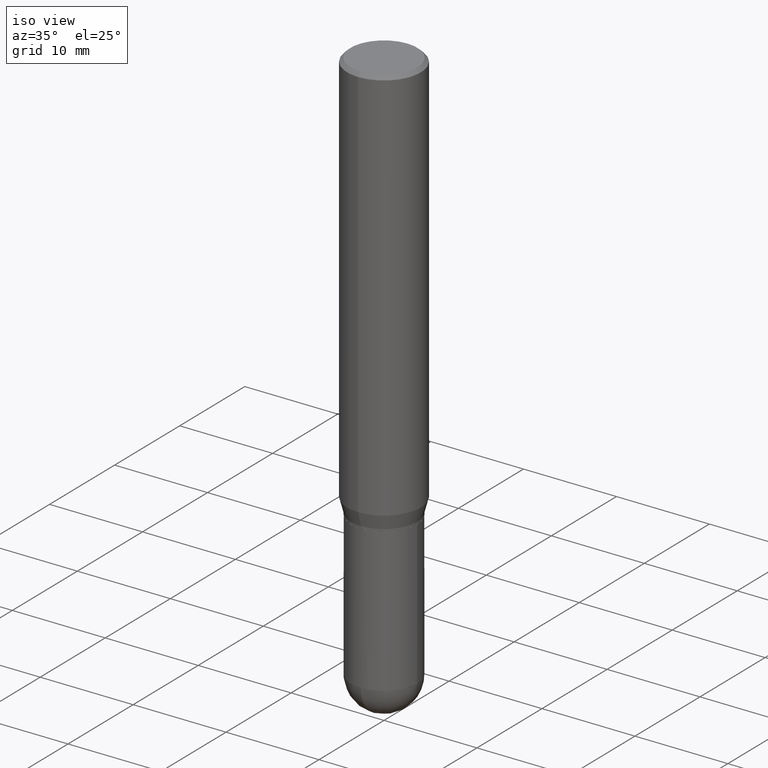
[diagram: clean part render]
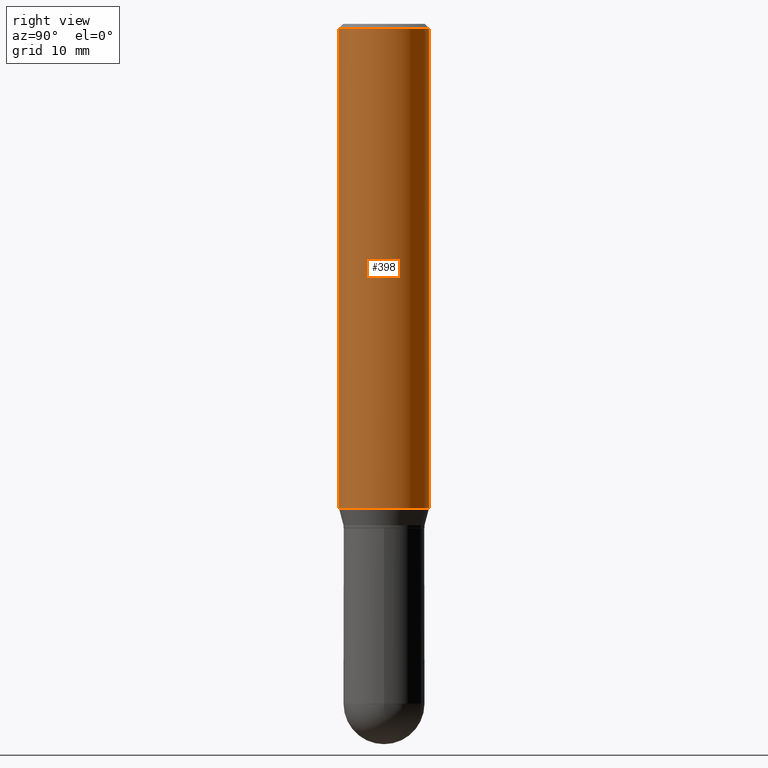
[diagram: tour spotlight — one face highlighted and labeled with its STEP entity id]
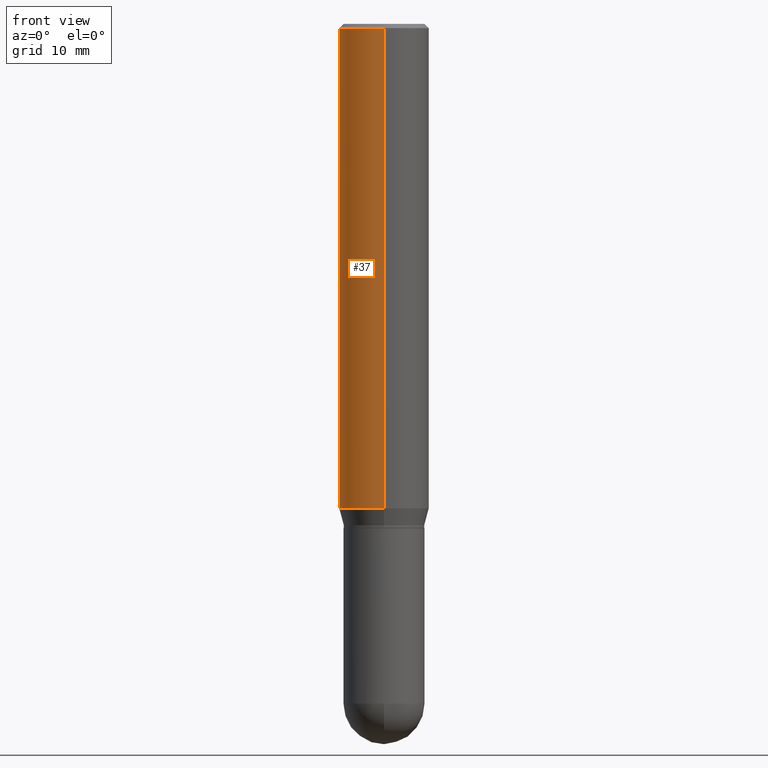
[diagram: tour spotlight — one face highlighted and labeled with its STEP entity id]
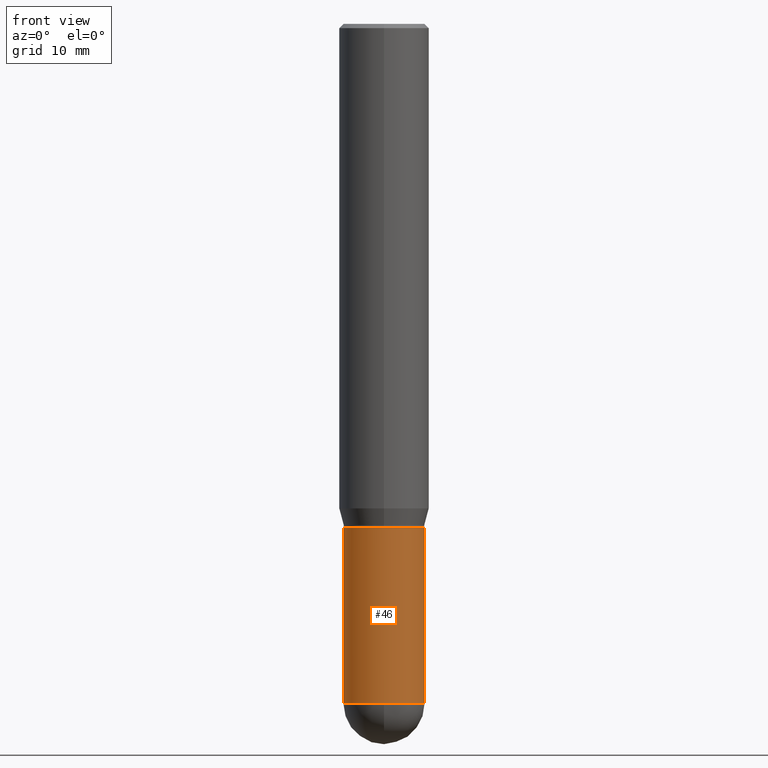
[diagram: tour spotlight — one face highlighted and labeled with its STEP entity id]
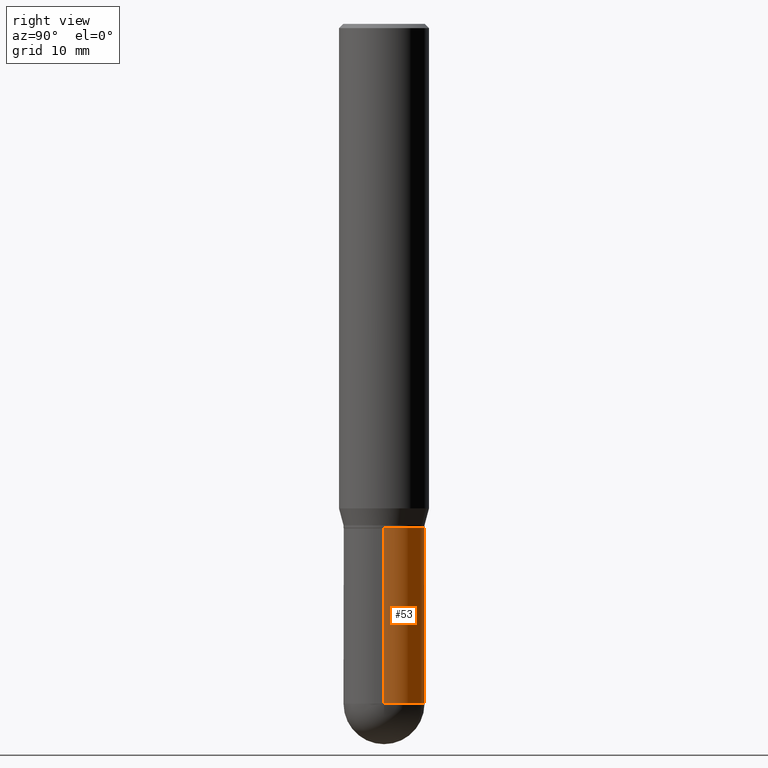
[diagram: tour spotlight — one face highlighted and labeled with its STEP entity id]
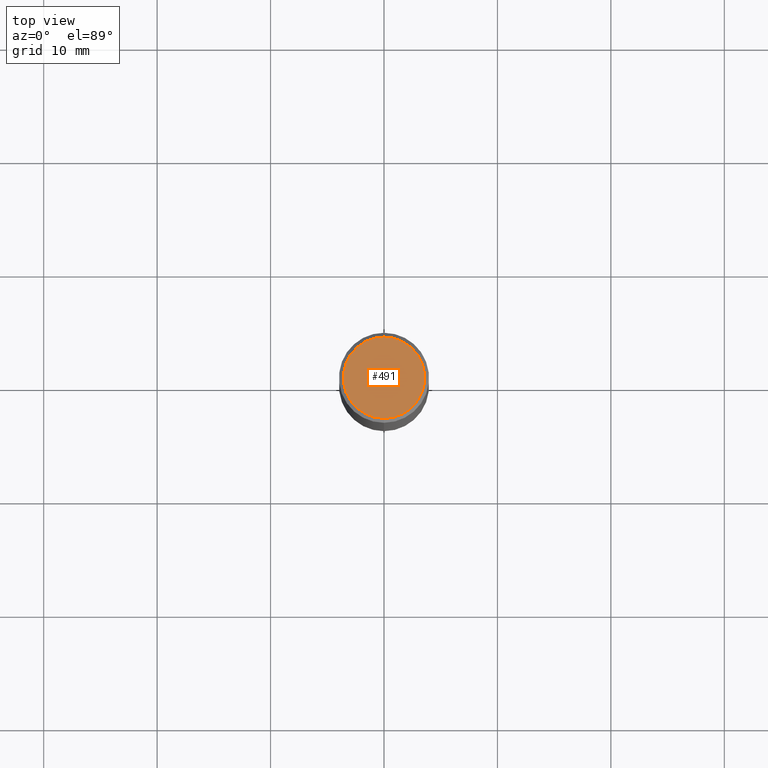
[diagram: tour spotlight — one face highlighted and labeled with its STEP entity id]
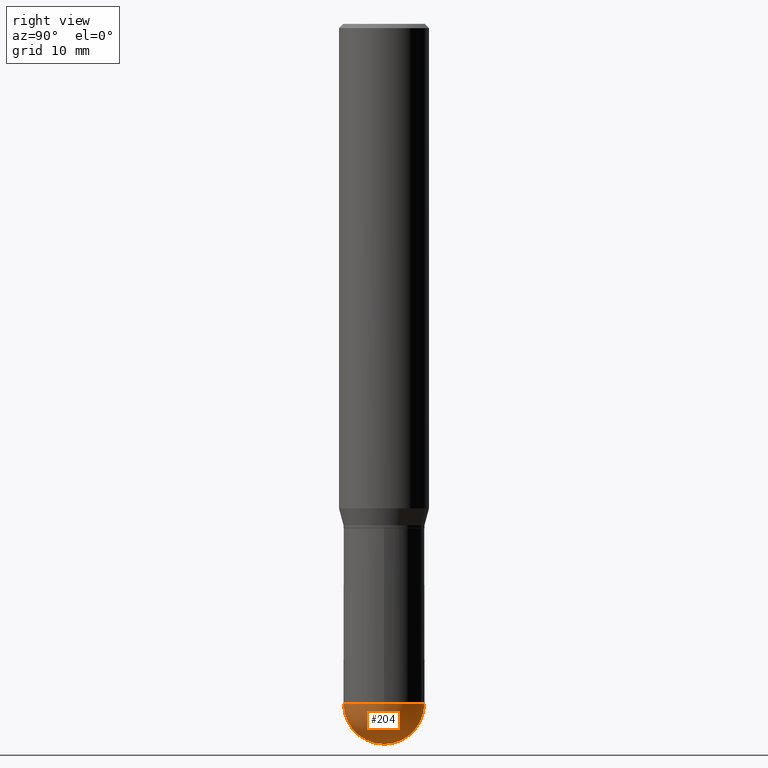
[diagram: tour spotlight — one face highlighted and labeled with its STEP entity id]
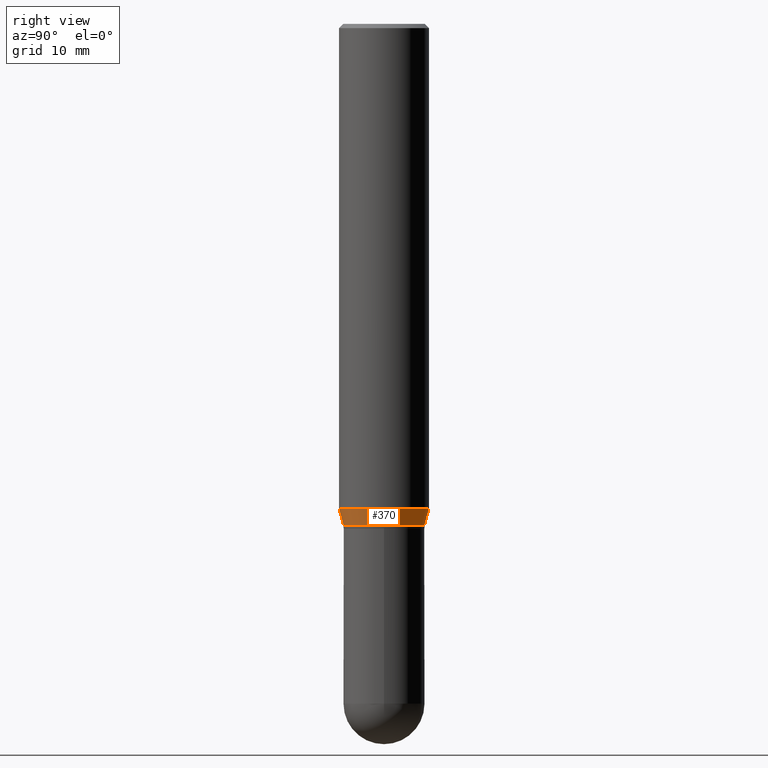
[diagram: tour spotlight — one face highlighted and labeled with its STEP entity id]
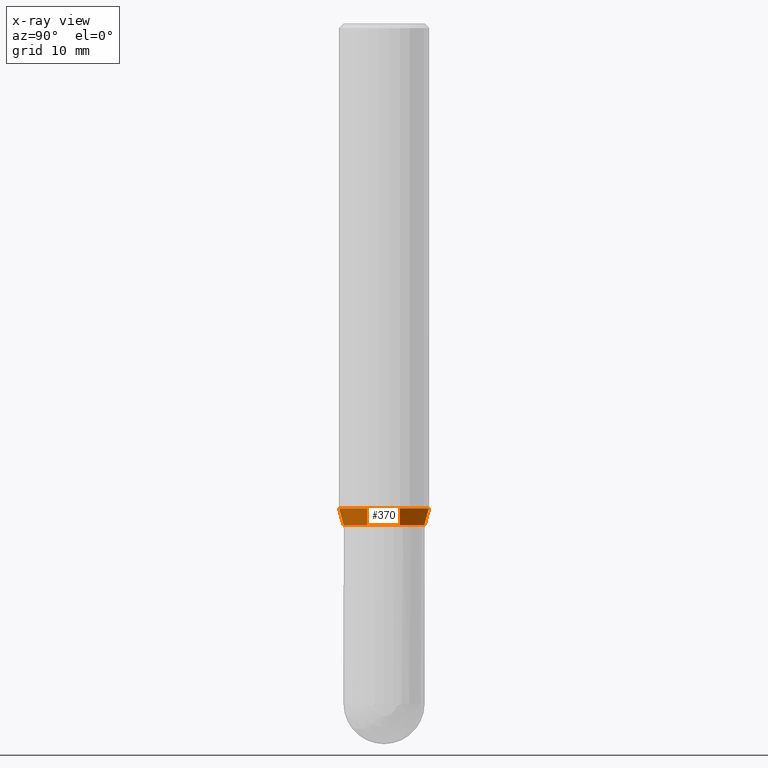
[diagram: x-ray of the same camera — body ghosted, this tour face saturated]
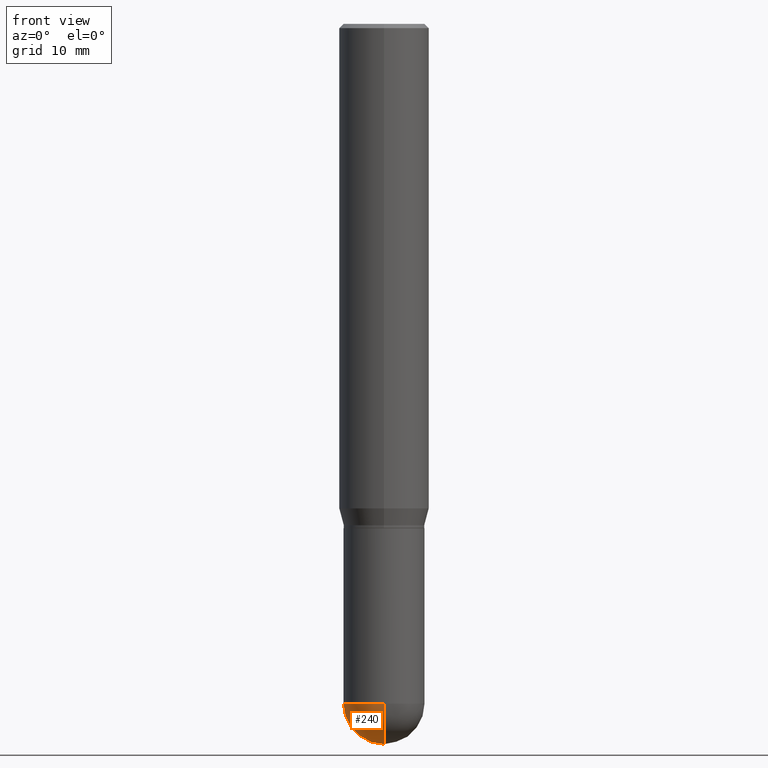
[diagram: tour spotlight — one face highlighted and labeled with its STEP entity id]
A machine part: a face-by-face anatomy tour. The part has 17 B-rep faces; the first image is the clean iso view, then the 8 largest visible faces are spotlighted one at a time (largest first), each with its STEP entity span.

Face 1 — right view, entity #398. In plain terms, the highlighted cylindrical surface (partial cylindrical patch) has radius 3.9688 mm, axis along (-0, 0, 1).
Definition (entity closure, byte-faithful):
#1 = VERTEX_POINT ( 'NONE', #6 ) ;
#6 = CARTESIAN_POINT ( 'NONE',  ( -1.091087918388437956E-15, -0.1562500000000058842, -1.681593404861546404 ) ) ;
#31 = CARTESIAN_POINT ( 'NONE',  ( 4.112439191980971805E-29, -5.871030058564987327E-15, -1.681593404861546848 ) ) ;
#49 = DIRECTION ( 'NONE',  ( -2.445560966219159996E-29, 3.491349360429000645E-15, 1.000000000000000000 ) ) ;
#56 = CIRCLE ( 'NONE', #174, 0.1562500000000000000 ) ;
#95 = EDGE_LOOP ( 'NONE', ( #345, #334, #500, #184 ) ) ;
#98 = VERTEX_POINT ( 'NONE', #280 ) ;
#111 = DIRECTION ( 'NONE',  ( -2.445560966219159716E-29, 3.491349360429001039E-15, 1.000000000000000000 ) ) ;
#133 = CIRCLE ( 'NONE', #226, 0.1562500000000000000 ) ;
#157 = LINE ( 'NONE', #493, #508 ) ;
#160 = DIRECTION ( 'NONE',  ( -6.982962677686265133E-15, -1.000000000000000000, 3.491349360429001039E-15 ) ) ;
#166 = AXIS2_PLACEMENT_3D ( 'NONE', #326, #250, #160 ) ;
#170 = CYLINDRICAL_SURFACE ( 'NONE', #166, 0.1562500000000000000 ) ;
#174 = AXIS2_PLACEMENT_3D ( 'NONE', #512, #350, #231 ) ;
#184 = ORIENTED_EDGE ( 'NONE', *, *, #328, .F. ) ;
#210 = CARTESIAN_POINT ( 'NONE',  ( -1.091087918388478976E-15, -0.1562500000000000000, 5.455233375670314124E-16 ) ) ;
#215 = FACE_OUTER_BOUND ( 'NONE', #95, .T. ) ;
#224 = DIRECTION ( 'NONE',  ( -2.445560966219159996E-29, 3.491349360429000645E-15, 1.000000000000000000 ) ) ;
#226 = AXIS2_PLACEMENT_3D ( 'NONE', #31, #111, #269 ) ;
#231 = DIRECTION ( 'NONE',  ( -6.982962677686265133E-15, -1.000000000000000000, 3.496765431890256920E-15 ) ) ;
#250 = DIRECTION ( 'NONE',  ( -2.445560966219159716E-29, 3.491349360429001039E-15, 1.000000000000000000 ) ) ;
#269 = DIRECTION ( 'NONE',  ( -6.982962677686265133E-15, -1.000000000000000000, 3.496765431890256920E-15 ) ) ;
#279 = CARTESIAN_POINT ( 'NONE',  ( 1.110223024625197561E-15, 0.1562499999999941436, -1.681593404861547514 ) ) ;
#280 = CARTESIAN_POINT ( 'NONE',  ( -1.091087918388478779E-15, -0.1562500000000000833, -0.01499999999999948423 ) ) ;
#285 = EDGE_CURVE ( 'NONE', #1, #507, #133, .T. ) ;
#289 = LINE ( 'NONE', #210, #293 ) ;
#293 = VECTOR ( 'NONE', #49, 39.37007874015748143 ) ;
#311 = VERTEX_POINT ( 'NONE', #397 ) ;
#326 = CARTESIAN_POINT ( 'NONE',  ( 0.000000000000000000, 0.000000000000000000, 0.000000000000000000 ) ) ;
#328 = EDGE_CURVE ( 'NONE', #1, #98, #289, .T. ) ;
#334 = ORIENTED_EDGE ( 'NONE', *, *, #374, .T. ) ;
#345 = ORIENTED_EDGE ( 'NONE', *, *, #285, .T. ) ;
#350 = DIRECTION ( 'NONE',  ( -2.445560966219159716E-29, 3.491349360429001039E-15, 1.000000000000000000 ) ) ;
#374 = EDGE_CURVE ( 'NONE', #507, #311, #157, .T. ) ;
#397 = CARTESIAN_POINT ( 'NONE',  ( 1.110223024625197561E-15, 0.1562499999999999445, -0.01500000000000057711 ) ) ;
#398 = ADVANCED_FACE ( 'NONE', ( #215 ), #170, .T. ) ;
#493 = CARTESIAN_POINT ( 'NONE',  ( 1.110223024625156343E-15, 0.1562500000000000000, -5.455233375670314124E-16 ) ) ;
#496 = EDGE_CURVE ( 'NONE', #98, #311, #56, .T. ) ;
#500 = ORIENTED_EDGE ( 'NONE', *, *, #496, .F. ) ;
#507 = VERTEX_POINT ( 'NONE', #279 ) ;
#508 = VECTOR ( 'NONE', #224, 39.37007874015748143 ) ;
#512 = CARTESIAN_POINT ( 'NONE',  ( 3.668341449328747176E-31, -5.237024040643512307E-17, -0.01500000000000003067 ) ) ;

Face 2 — front view, entity #37. In plain terms, the highlighted cylindrical surface (partial cylindrical patch) has radius 3.9688 mm, axis along (-0, 0, 1).
Definition (entity closure, byte-faithful):
#1 = VERTEX_POINT ( 'NONE', #6 ) ;
#6 = CARTESIAN_POINT ( 'NONE',  ( -1.091087918388437956E-15, -0.1562500000000058842, -1.681593404861546404 ) ) ;
#24 = CARTESIAN_POINT ( 'NONE',  ( 4.112439191980971805E-29, -5.871030058564987327E-15, -1.681593404861546848 ) ) ;
#26 = DIRECTION ( 'NONE',  ( -2.445560966219159716E-29, 3.491349360429001039E-15, 1.000000000000000000 ) ) ;
#37 = ADVANCED_FACE ( 'NONE', ( #251 ), #445, .T. ) ;
#47 = CARTESIAN_POINT ( 'NONE',  ( 0.000000000000000000, 0.000000000000000000, 0.000000000000000000 ) ) ;
#49 = DIRECTION ( 'NONE',  ( -2.445560966219159996E-29, 3.491349360429000645E-15, 1.000000000000000000 ) ) ;
#61 = CIRCLE ( 'NONE', #452, 0.1562500000000000000 ) ;
#73 = ORIENTED_EDGE ( 'NONE', *, *, #328, .T. ) ;
#77 = CARTESIAN_POINT ( 'NONE',  ( 3.668341449328747176E-31, -5.237024040643512307E-17, -0.01500000000000003067 ) ) ;
#98 = VERTEX_POINT ( 'NONE', #280 ) ;
#100 = ORIENTED_EDGE ( 'NONE', *, *, #374, .F. ) ;
#114 = DIRECTION ( 'NONE',  ( -2.445560966219159716E-29, 3.491349360429001039E-15, 1.000000000000000000 ) ) ;
#115 = EDGE_LOOP ( 'NONE', ( #100, #302, #73, #237 ) ) ;
#157 = LINE ( 'NONE', #493, #508 ) ;
#161 = DIRECTION ( 'NONE',  ( -2.445560966219159716E-29, 3.491349360429001039E-15, 1.000000000000000000 ) ) ;
#210 = CARTESIAN_POINT ( 'NONE',  ( -1.091087918388478976E-15, -0.1562500000000000000, 5.455233375670314124E-16 ) ) ;
#224 = DIRECTION ( 'NONE',  ( -2.445560966219159996E-29, 3.491349360429000645E-15, 1.000000000000000000 ) ) ;
#237 = ORIENTED_EDGE ( 'NONE', *, *, #454, .F. ) ;
#251 = FACE_OUTER_BOUND ( 'NONE', #115, .T. ) ;
#259 = CIRCLE ( 'NONE', #310, 0.1562500000000000000 ) ;
#265 = EDGE_CURVE ( 'NONE', #507, #1, #61, .T. ) ;
#279 = CARTESIAN_POINT ( 'NONE',  ( 1.110223024625197561E-15, 0.1562499999999941436, -1.681593404861547514 ) ) ;
#280 = CARTESIAN_POINT ( 'NONE',  ( -1.091087918388478779E-15, -0.1562500000000000833, -0.01499999999999948423 ) ) ;
#289 = LINE ( 'NONE', #210, #293 ) ;
#293 = VECTOR ( 'NONE', #49, 39.37007874015748143 ) ;
#302 = ORIENTED_EDGE ( 'NONE', *, *, #265, .T. ) ;
#310 = AXIS2_PLACEMENT_3D ( 'NONE', #77, #114, #421 ) ;
#311 = VERTEX_POINT ( 'NONE', #397 ) ;
#317 = DIRECTION ( 'NONE',  ( -6.982962677686265133E-15, -1.000000000000000000, 3.491349360429001039E-15 ) ) ;
#328 = EDGE_CURVE ( 'NONE', #1, #98, #289, .T. ) ;
#344 = AXIS2_PLACEMENT_3D ( 'NONE', #47, #161, #317 ) ;
#374 = EDGE_CURVE ( 'NONE', #507, #311, #157, .T. ) ;
#397 = CARTESIAN_POINT ( 'NONE',  ( 1.110223024625197561E-15, 0.1562499999999999445, -0.01500000000000057711 ) ) ;
#421 = DIRECTION ( 'NONE',  ( -6.982962677686265133E-15, -1.000000000000000000, 3.496765431890256920E-15 ) ) ;
#445 = CYLINDRICAL_SURFACE ( 'NONE', #344, 0.1562500000000000000 ) ;
#452 = AXIS2_PLACEMENT_3D ( 'NONE', #24, #26, #501 ) ;
#454 = EDGE_CURVE ( 'NONE', #311, #98, #259, .T. ) ;
#493 = CARTESIAN_POINT ( 'NONE',  ( 1.110223024625156343E-15, 0.1562500000000000000, -5.455233375670314124E-16 ) ) ;
#501 = DIRECTION ( 'NONE',  ( -6.982962677686265133E-15, -1.000000000000000000, 3.496765431890256920E-15 ) ) ;
#507 = VERTEX_POINT ( 'NONE', #279 ) ;
#508 = VECTOR ( 'NONE', #224, 39.37007874015748143 ) ;

Face 3 — front view, entity #46. In plain terms, the highlighted cylindrical surface (partial cylindrical patch) has radius 3.5712 mm, axis along (-0, 0, 1).
Definition (entity closure, byte-faithful):
#2 = ORIENTED_EDGE ( 'NONE', *, *, #305, .T. ) ;
#12 = DIRECTION ( 'NONE',  ( -2.445468806185136597E-29, 3.491481338843145583E-15, 1.000000000000000000 ) ) ;
#32 = DIRECTION ( 'NONE',  ( -2.445468806185136597E-29, 3.491481338843145583E-15, 1.000000000000000000 ) ) ;
#44 = CARTESIAN_POINT ( 'NONE',  ( 0.1406000000000000583, -8.155751259403701439E-15, -2.359399999999999942 ) ) ;
#46 = ADVANCED_FACE ( 'NONE', ( #208 ), #396, .T. ) ;
#60 = VERTEX_POINT ( 'NONE', #284 ) ;
#65 = CARTESIAN_POINT ( 'NONE',  ( 4.279570410823989044E-29, -6.110092342975505460E-15, -1.750000000000000222 ) ) ;
#67 = CARTESIAN_POINT ( 'NONE',  ( -0.1406000000000000028, 9.990230864787008809E-16, -6.916022736898399140E-30 ) ) ;
#69 = VERTEX_POINT ( 'NONE', #249 ) ;
#70 = LINE ( 'NONE', #67, #464 ) ;
#79 = ORIENTED_EDGE ( 'NONE', *, *, #448, .F. ) ;
#97 = CIRCLE ( 'NONE', #432, 0.1406000000000000305 ) ;
#124 = DIRECTION ( 'NONE',  ( 1.000000000000000000, -6.982962677686268288E-15, 4.876176775795936353E-29 ) ) ;
#129 = ORIENTED_EDGE ( 'NONE', *, *, #422, .T. ) ;
#162 = DIRECTION ( 'NONE',  ( -2.445468806185136877E-29, 3.491481338843145188E-15, 1.000000000000000000 ) ) ;
#167 = EDGE_CURVE ( 'NONE', #404, #187, #463, .T. ) ;
#180 = AXIS2_PLACEMENT_3D ( 'NONE', #65, #229, #340 ) ;
#187 = VERTEX_POINT ( 'NONE', #44 ) ;
#191 = CARTESIAN_POINT ( 'NONE',  ( 5.769839101313211634E-29, -8.237801070866517629E-15, -2.359399999999999942 ) ) ;
#202 = CARTESIAN_POINT ( 'NONE',  ( -9.990230864786434913E-16, -0.1406000000000083017, -2.359399999999999498 ) ) ;
#208 = FACE_OUTER_BOUND ( 'NONE', #329, .T. ) ;
#216 = ORIENTED_EDGE ( 'NONE', *, *, #167, .T. ) ;
#229 = DIRECTION ( 'NONE',  ( -2.445468806185136597E-29, 3.491481338843145583E-15, 1.000000000000000000 ) ) ;
#235 = AXIS2_PLACEMENT_3D ( 'NONE', #191, #343, #506 ) ;
#249 = CARTESIAN_POINT ( 'NONE',  ( -0.1406000000000000583, -6.174923620442310269E-15, -2.359399999999999942 ) ) ;
#252 = CARTESIAN_POINT ( 'NONE',  ( 0.1406000000000000028, -9.818045524826893030E-16, 6.855904546769086274E-30 ) ) ;
#284 = CARTESIAN_POINT ( 'NONE',  ( -0.1406000000000000028, -6.174923620442310269E-15, -1.750000000000000222 ) ) ;
#305 = EDGE_CURVE ( 'NONE', #187, #349, #363, .T. ) ;
#320 = EDGE_CURVE ( 'NONE', #60, #349, #401, .T. ) ;
#327 = AXIS2_PLACEMENT_3D ( 'NONE', #483, #12, #124 ) ;
#329 = EDGE_LOOP ( 'NONE', ( #79, #129, #216, #2, #382 ) ) ;
#331 = VECTOR ( 'NONE', #162, 39.37007874015748143 ) ;
#335 = DIRECTION ( 'NONE',  ( 1.000000000000000000, -6.982962677686270655E-15, 0.000000000000000000 ) ) ;
#340 = DIRECTION ( 'NONE',  ( 1.000000000000000000, -6.982962677686265133E-15, 0.000000000000000000 ) ) ;
#343 = DIRECTION ( 'NONE',  ( -2.445468806185136597E-29, 3.491481338843145583E-15, 1.000000000000000000 ) ) ;
#349 = VERTEX_POINT ( 'NONE', #366 ) ;
#363 = LINE ( 'NONE', #252, #331 ) ;
#366 = CARTESIAN_POINT ( 'NONE',  ( 0.1406000000000000028, -7.091896895458194566E-15, -1.750000000000000222 ) ) ;
#382 = ORIENTED_EDGE ( 'NONE', *, *, #320, .F. ) ;
#396 = CYLINDRICAL_SURFACE ( 'NONE', #327, 0.1406000000000000028 ) ;
#401 = CIRCLE ( 'NONE', #180, 0.1406000000000000028 ) ;
#404 = VERTEX_POINT ( 'NONE', #202 ) ;
#407 = CARTESIAN_POINT ( 'NONE',  ( 5.769839101313211634E-29, -8.237801070866517629E-15, -2.359399999999999942 ) ) ;
#422 = EDGE_CURVE ( 'NONE', #69, #404, #97, .T. ) ;
#432 = AXIS2_PLACEMENT_3D ( 'NONE', #407, #32, #335 ) ;
#435 = DIRECTION ( 'NONE',  ( -2.445468806185136877E-29, 3.491481338843145188E-15, 1.000000000000000000 ) ) ;
#448 = EDGE_CURVE ( 'NONE', #69, #60, #70, .T. ) ;
#463 = CIRCLE ( 'NONE', #235, 0.1406000000000000305 ) ;
#464 = VECTOR ( 'NONE', #435, 39.37007874015748143 ) ;
#483 = CARTESIAN_POINT ( 'NONE',  ( 0.000000000000000000, 0.000000000000000000, 0.000000000000000000 ) ) ;
#506 = DIRECTION ( 'NONE',  ( 1.000000000000000000, -6.982962677686270655E-15, 0.000000000000000000 ) ) ;

Face 4 — right view, entity #53. In plain terms, the highlighted cylindrical surface (partial cylindrical patch) has radius 3.5712 mm, axis along (-0, 0, 1).
Definition (entity closure, byte-faithful):
#11 = CYLINDRICAL_SURFACE ( 'NONE', #297, 0.1406000000000000028 ) ;
#18 = DIRECTION ( 'NONE',  ( -2.445468806185136597E-29, 3.491481338843145583E-15, 1.000000000000000000 ) ) ;
#19 = CARTESIAN_POINT ( 'NONE',  ( 0.000000000000000000, 0.000000000000000000, 0.000000000000000000 ) ) ;
#35 = AXIS2_PLACEMENT_3D ( 'NONE', #68, #388, #348 ) ;
#42 = CARTESIAN_POINT ( 'NONE',  ( 9.818045524827470871E-16, 0.1405999999999918426, -2.359400000000000386 ) ) ;
#44 = CARTESIAN_POINT ( 'NONE',  ( 0.1406000000000000583, -8.155751259403701439E-15, -2.359399999999999942 ) ) ;
#53 = ADVANCED_FACE ( 'NONE', ( #286 ), #11, .T. ) ;
#60 = VERTEX_POINT ( 'NONE', #284 ) ;
#67 = CARTESIAN_POINT ( 'NONE',  ( -0.1406000000000000028, 9.990230864787008809E-16, -6.916022736898399140E-30 ) ) ;
#68 = CARTESIAN_POINT ( 'NONE',  ( 5.769839101313211634E-29, -8.237801070866517629E-15, -2.359399999999999942 ) ) ;
#69 = VERTEX_POINT ( 'NONE', #249 ) ;
#70 = LINE ( 'NONE', #67, #464 ) ;
#75 = DIRECTION ( 'NONE',  ( -2.445468806185136597E-29, 3.491481338843145583E-15, 1.000000000000000000 ) ) ;
#90 = AXIS2_PLACEMENT_3D ( 'NONE', #434, #75, #312 ) ;
#117 = ORIENTED_EDGE ( 'NONE', *, *, #414, .F. ) ;
#162 = DIRECTION ( 'NONE',  ( -2.445468806185136877E-29, 3.491481338843145188E-15, 1.000000000000000000 ) ) ;
#169 = DIRECTION ( 'NONE',  ( 1.000000000000000000, -6.982962677686268288E-15, 4.876176775795936353E-29 ) ) ;
#178 = ORIENTED_EDGE ( 'NONE', *, *, #305, .F. ) ;
#187 = VERTEX_POINT ( 'NONE', #44 ) ;
#212 = EDGE_CURVE ( 'NONE', #268, #69, #276, .T. ) ;
#225 = DIRECTION ( 'NONE',  ( -2.445468806185136597E-29, 3.491481338843145583E-15, 1.000000000000000000 ) ) ;
#249 = CARTESIAN_POINT ( 'NONE',  ( -0.1406000000000000583, -6.174923620442310269E-15, -2.359399999999999942 ) ) ;
#252 = CARTESIAN_POINT ( 'NONE',  ( 0.1406000000000000028, -9.818045524826893030E-16, 6.855904546769086274E-30 ) ) ;
#268 = VERTEX_POINT ( 'NONE', #42 ) ;
#274 = EDGE_CURVE ( 'NONE', #187, #268, #287, .T. ) ;
#276 = CIRCLE ( 'NONE', #35, 0.1406000000000000305 ) ;
#278 = ORIENTED_EDGE ( 'NONE', *, *, #212, .T. ) ;
#284 = CARTESIAN_POINT ( 'NONE',  ( -0.1406000000000000028, -6.174923620442310269E-15, -1.750000000000000222 ) ) ;
#286 = FACE_OUTER_BOUND ( 'NONE', #399, .T. ) ;
#287 = CIRCLE ( 'NONE', #90, 0.1406000000000000305 ) ;
#297 = AXIS2_PLACEMENT_3D ( 'NONE', #19, #18, #169 ) ;
#305 = EDGE_CURVE ( 'NONE', #187, #349, #363, .T. ) ;
#312 = DIRECTION ( 'NONE',  ( 1.000000000000000000, -6.982962677686270655E-15, 0.000000000000000000 ) ) ;
#331 = VECTOR ( 'NONE', #162, 39.37007874015748143 ) ;
#348 = DIRECTION ( 'NONE',  ( 1.000000000000000000, -6.982962677686270655E-15, 0.000000000000000000 ) ) ;
#349 = VERTEX_POINT ( 'NONE', #366 ) ;
#363 = LINE ( 'NONE', #252, #331 ) ;
#366 = CARTESIAN_POINT ( 'NONE',  ( 0.1406000000000000028, -7.091896895458194566E-15, -1.750000000000000222 ) ) ;
#373 = CARTESIAN_POINT ( 'NONE',  ( 4.279570410823989044E-29, -6.110092342975505460E-15, -1.750000000000000222 ) ) ;
#388 = DIRECTION ( 'NONE',  ( -2.445468806185136597E-29, 3.491481338843145583E-15, 1.000000000000000000 ) ) ;
#399 = EDGE_LOOP ( 'NONE', ( #278, #453, #117, #178, #462 ) ) ;
#414 = EDGE_CURVE ( 'NONE', #349, #60, #458, .T. ) ;
#434 = CARTESIAN_POINT ( 'NONE',  ( 5.769839101313211634E-29, -8.237801070866517629E-15, -2.359399999999999942 ) ) ;
#435 = DIRECTION ( 'NONE',  ( -2.445468806185136877E-29, 3.491481338843145188E-15, 1.000000000000000000 ) ) ;
#444 = AXIS2_PLACEMENT_3D ( 'NONE', #373, #225, #446 ) ;
#446 = DIRECTION ( 'NONE',  ( 1.000000000000000000, -6.982962677686265133E-15, 0.000000000000000000 ) ) ;
#448 = EDGE_CURVE ( 'NONE', #69, #60, #70, .T. ) ;
#453 = ORIENTED_EDGE ( 'NONE', *, *, #448, .T. ) ;
#458 = CIRCLE ( 'NONE', #444, 0.1406000000000000028 ) ;
#462 = ORIENTED_EDGE ( 'NONE', *, *, #274, .T. ) ;
#464 = VECTOR ( 'NONE', #435, 39.37007874015748143 ) ;

Face 5 — top view, entity #491. In plain terms, the highlighted planar face has unit normal (0, -0, -1).
Definition (entity closure, byte-faithful):
#14 = CARTESIAN_POINT ( 'NONE',  ( 7.297477244033334279E-46, -1.041807702225884863E-31, -2.983968645572244653E-17 ) ) ;
#20 = AXIS2_PLACEMENT_3D ( 'NONE', #14, #164, #319 ) ;
#27 = PLANE ( 'NONE',  #126 ) ;
#40 = FACE_OUTER_BOUND ( 'NONE', #57, .T. ) ;
#57 = EDGE_LOOP ( 'NONE', ( #473, #356 ) ) ;
#88 = EDGE_CURVE ( 'NONE', #423, #222, #377, .T. ) ;
#119 = DIRECTION ( 'NONE',  ( -2.445560966219159716E-29, 3.491349360429001039E-15, 1.000000000000000000 ) ) ;
#126 = AXIS2_PLACEMENT_3D ( 'NONE', #233, #238, #195 ) ;
#164 = DIRECTION ( 'NONE',  ( -2.445560966219159716E-29, 3.491349360429001039E-15, 1.000000000000000000 ) ) ;
#194 = CIRCLE ( 'NONE', #298, 0.1412499999999999867 ) ;
#195 = DIRECTION ( 'NONE',  ( 6.982962677686265922E-15, 1.000000000000000000, -3.491349360429000645E-15 ) ) ;
#222 = VERTEX_POINT ( 'NONE', #470 ) ;
#233 = CARTESIAN_POINT ( 'NONE',  ( 9.863434782231850151E-16, 0.1412499999999999867, -5.080729403884576451E-16 ) ) ;
#238 = DIRECTION ( 'NONE',  ( 2.445560966219159716E-29, -3.491349360429000645E-15, -1.000000000000000000 ) ) ;
#298 = AXIS2_PLACEMENT_3D ( 'NONE', #456, #119, #438 ) ;
#319 = DIRECTION ( 'NONE',  ( -6.982962677686265922E-15, -1.000000000000000000, 3.491349360429000645E-15 ) ) ;
#356 = ORIENTED_EDGE ( 'NONE', *, *, #88, .T. ) ;
#377 = CIRCLE ( 'NONE', #20, 0.1412499999999999867 ) ;
#411 = EDGE_CURVE ( 'NONE', #222, #423, #194, .T. ) ;
#423 = VERTEX_POINT ( 'NONE', #430 ) ;
#430 = CARTESIAN_POINT ( 'NONE',  ( -1.020499077168515012E-15, -0.1412499999999999867, 4.633134107048739476E-16 ) ) ;
#438 = DIRECTION ( 'NONE',  ( -6.982962677686265922E-15, -1.000000000000000000, 3.491349360429000645E-15 ) ) ;
#456 = CARTESIAN_POINT ( 'NONE',  ( 7.297477244033334279E-46, -1.041807702225884863E-31, -2.983968645572244653E-17 ) ) ;
#470 = CARTESIAN_POINT ( 'NONE',  ( 1.038715698305832292E-15, 0.1412499999999999867, -5.229927836163188776E-16 ) ) ;
#473 = ORIENTED_EDGE ( 'NONE', *, *, #411, .T. ) ;
#491 = ADVANCED_FACE ( 'NONE', ( #40 ), #27, .F. ) ;

Face 6 — right view, entity #204. In plain terms, the highlighted spherical surface has radius 3.5712 mm.
Definition (entity closure, byte-faithful):
#42 = CARTESIAN_POINT ( 'NONE',  ( 9.818045524827470871E-16, 0.1405999999999918426, -2.359400000000000386 ) ) ;
#44 = CARTESIAN_POINT ( 'NONE',  ( 0.1406000000000000583, -8.155751259403701439E-15, -2.359399999999999942 ) ) ;
#72 = DIRECTION ( 'NONE',  ( -1.000000000000000000, 6.982962677686265922E-15, -4.883557194083112340E-29 ) ) ;
#75 = DIRECTION ( 'NONE',  ( -2.445468806185136597E-29, 3.491481338843145583E-15, 1.000000000000000000 ) ) ;
#76 = AXIS2_PLACEMENT_3D ( 'NONE', #353, #171, #108 ) ;
#90 = AXIS2_PLACEMENT_3D ( 'NONE', #434, #75, #312 ) ;
#103 = DIRECTION ( 'NONE',  ( 1.000000000000000000, -6.982962677686265922E-15, 4.883557194083112340E-29 ) ) ;
#108 = DIRECTION ( 'NONE',  ( -7.105427357601001859E-15, -1.000000000000000000, 0.000000000000000000 ) ) ;
#148 = VERTEX_POINT ( 'NONE', #205 ) ;
#156 = FACE_OUTER_BOUND ( 'NONE', #206, .T. ) ;
#167 = EDGE_CURVE ( 'NONE', #404, #187, #463, .T. ) ;
#171 = DIRECTION ( 'NONE',  ( -1.000000000000000000, 7.105427357601001070E-15, -4.926315508542082329E-29 ) ) ;
#187 = VERTEX_POINT ( 'NONE', #44 ) ;
#191 = CARTESIAN_POINT ( 'NONE',  ( 5.769839101313211634E-29, -8.237801070866517629E-15, -2.359399999999999942 ) ) ;
#196 = ORIENTED_EDGE ( 'NONE', *, *, #408, .F. ) ;
#202 = CARTESIAN_POINT ( 'NONE',  ( -9.990230864786434913E-16, -0.1406000000000083017, -2.359399999999999498 ) ) ;
#204 = ADVANCED_FACE ( 'NONE', ( #156 ), #232, .T. ) ;
#205 = CARTESIAN_POINT ( 'NONE',  ( 6.107660196449910766E-29, -8.737312614105869844E-15, -2.500000000000000000 ) ) ;
#206 = EDGE_LOOP ( 'NONE', ( #196, #504, #428, #468 ) ) ;
#232 = SPHERICAL_SURFACE ( 'NONE', #410, 0.1406000000000000860 ) ;
#234 = DIRECTION ( 'NONE',  ( 6.982962677686265922E-15, 1.000000000000000000, -3.885985766236502230E-15 ) ) ;
#235 = AXIS2_PLACEMENT_3D ( 'NONE', #191, #343, #506 ) ;
#264 = DIRECTION ( 'NONE',  ( 6.982962677686266711E-15, 1.000000000000000000, 0.000000000000000000 ) ) ;
#268 = VERTEX_POINT ( 'NONE', #42 ) ;
#271 = CARTESIAN_POINT ( 'NONE',  ( 5.757815463287349061E-29, -8.255019604862529009E-15, -2.359399999999999942 ) ) ;
#274 = EDGE_CURVE ( 'NONE', #187, #268, #287, .T. ) ;
#287 = CIRCLE ( 'NONE', #90, 0.1406000000000000305 ) ;
#312 = DIRECTION ( 'NONE',  ( 1.000000000000000000, -6.982962677686270655E-15, 0.000000000000000000 ) ) ;
#316 = EDGE_CURVE ( 'NONE', #148, #268, #393, .T. ) ;
#343 = DIRECTION ( 'NONE',  ( -2.445468806185136597E-29, 3.491481338843145583E-15, 1.000000000000000000 ) ) ;
#353 = CARTESIAN_POINT ( 'NONE',  ( 5.757815463287349061E-29, -8.255019604862529009E-15, -2.359399999999999942 ) ) ;
#360 = CARTESIAN_POINT ( 'NONE',  ( 5.757815463287349061E-29, -8.255019604862529009E-15, -2.359399999999999942 ) ) ;
#393 = CIRCLE ( 'NONE', #431, 0.1406000000000000860 ) ;
#404 = VERTEX_POINT ( 'NONE', #202 ) ;
#408 = EDGE_CURVE ( 'NONE', #148, #404, #510, .T. ) ;
#410 = AXIS2_PLACEMENT_3D ( 'NONE', #271, #72, #234 ) ;
#428 = ORIENTED_EDGE ( 'NONE', *, *, #274, .F. ) ;
#431 = AXIS2_PLACEMENT_3D ( 'NONE', #360, #103, #264 ) ;
#434 = CARTESIAN_POINT ( 'NONE',  ( 5.769839101313211634E-29, -8.237801070866517629E-15, -2.359399999999999942 ) ) ;
#463 = CIRCLE ( 'NONE', #235, 0.1406000000000000305 ) ;
#468 = ORIENTED_EDGE ( 'NONE', *, *, #167, .F. ) ;
#504 = ORIENTED_EDGE ( 'NONE', *, *, #316, .T. ) ;
#506 = DIRECTION ( 'NONE',  ( 1.000000000000000000, -6.982962677686270655E-15, 0.000000000000000000 ) ) ;
#510 = CIRCLE ( 'NONE', #76, 0.1406000000000000860 ) ;

Face 7 — right view, entity #370. An x-ray twin of the same camera follows (body ghosted, this face saturated) — the face is partly hidden behind the body. In plain terms, the highlighted conical surface has half-angle 15 deg.
Definition (entity closure, byte-faithful):
#1 = VERTEX_POINT ( 'NONE', #6 ) ;
#6 = CARTESIAN_POINT ( 'NONE',  ( -1.091087918388437956E-15, -0.1562500000000058842, -1.681593404861546404 ) ) ;
#30 = VERTEX_POINT ( 'NONE', #87 ) ;
#31 = CARTESIAN_POINT ( 'NONE',  ( 4.112439191980971805E-29, -5.871030058564987327E-15, -1.681593404861546848 ) ) ;
#54 = EDGE_CURVE ( 'NONE', #427, #507, #324, .T. ) ;
#63 = ORIENTED_EDGE ( 'NONE', *, *, #285, .F. ) ;
#84 = EDGE_CURVE ( 'NONE', #30, #427, #495, .T. ) ;
#86 = CARTESIAN_POINT ( 'NONE',  ( 4.255276081221338142E-29, -6.074947887146461556E-15, -1.739999999999999991 ) ) ;
#87 = CARTESIAN_POINT ( 'NONE',  ( -9.818045524826459157E-16, -0.1406000000000059980, -1.739999999999999547 ) ) ;
#89 = DIRECTION ( 'NONE',  ( -2.445560966219159716E-29, 3.491349360429001039E-15, 1.000000000000000000 ) ) ;
#104 = VECTOR ( 'NONE', #292, 39.37007874015748143 ) ;
#110 = DIRECTION ( 'NONE',  ( -6.982962677686266711E-15, -1.000000000000000000, 3.885985766236507752E-15 ) ) ;
#111 = DIRECTION ( 'NONE',  ( -2.445560966219159716E-29, 3.491349360429001039E-15, 1.000000000000000000 ) ) ;
#118 = AXIS2_PLACEMENT_3D ( 'NONE', #471, #354, #110 ) ;
#133 = CIRCLE ( 'NONE', #226, 0.1562500000000000000 ) ;
#172 = CARTESIAN_POINT ( 'NONE',  ( 9.990230864787428877E-16, 0.1405999999999938410, -1.740000000000000657 ) ) ;
#181 = VECTOR ( 'NONE', #300, 39.37007874015748143 ) ;
#186 = LINE ( 'NONE', #378, #181 ) ;
#218 = EDGE_LOOP ( 'NONE', ( #461, #488, #63, #263 ) ) ;
#226 = AXIS2_PLACEMENT_3D ( 'NONE', #31, #111, #269 ) ;
#263 = ORIENTED_EDGE ( 'NONE', *, *, #487, .F. ) ;
#269 = DIRECTION ( 'NONE',  ( -6.982962677686265133E-15, -1.000000000000000000, 3.496765431890256920E-15 ) ) ;
#279 = CARTESIAN_POINT ( 'NONE',  ( 1.110223024625197561E-15, 0.1562499999999941436, -1.681593404861547514 ) ) ;
#285 = EDGE_CURVE ( 'NONE', #1, #507, #133, .T. ) ;
#292 = DIRECTION ( 'NONE',  ( 1.839019923739597160E-15, 0.2588190451025245142, 0.9659258262890673130 ) ) ;
#300 = DIRECTION ( 'NONE',  ( -1.807323732225326984E-15, -0.2588190451025177419, 0.9659258262890690894 ) ) ;
#324 = LINE ( 'NONE', #172, #104 ) ;
#351 = FACE_OUTER_BOUND ( 'NONE', #218, .T. ) ;
#354 = DIRECTION ( 'NONE',  ( -2.445560966219159716E-29, 3.491349360429001039E-15, 1.000000000000000000 ) ) ;
#370 = ADVANCED_FACE ( 'NONE', ( #351 ), #486, .T. ) ;
#378 = CARTESIAN_POINT ( 'NONE',  ( -9.818045524826459157E-16, -0.1406000000000059980, -1.739999999999999547 ) ) ;
#395 = DIRECTION ( 'NONE',  ( -6.982962677686266711E-15, -1.000000000000000000, 3.885985766236507752E-15 ) ) ;
#427 = VERTEX_POINT ( 'NONE', #467 ) ;
#457 = AXIS2_PLACEMENT_3D ( 'NONE', #86, #89, #395 ) ;
#461 = ORIENTED_EDGE ( 'NONE', *, *, #84, .T. ) ;
#467 = CARTESIAN_POINT ( 'NONE',  ( 1.054623055551970126E-15, 0.1405999999999938410, -1.740000000000000657 ) ) ;
#471 = CARTESIAN_POINT ( 'NONE',  ( 4.255276081221338142E-29, -6.074947887146461556E-15, -1.739999999999999991 ) ) ;
#486 = CONICAL_SURFACE ( 'NONE', #118, 0.1405999999999999195, 0.2617993877991497964 ) ;
#487 = EDGE_CURVE ( 'NONE', #30, #1, #186, .T. ) ;
#488 = ORIENTED_EDGE ( 'NONE', *, *, #54, .T. ) ;
#495 = CIRCLE ( 'NONE', #457, 0.1405999999999999195 ) ;
#507 = VERTEX_POINT ( 'NONE', #279 ) ;

Face 8 — front view, entity #240. In plain terms, the highlighted spherical surface has radius 3.5712 mm.
Definition (entity closure, byte-faithful):
#9 = ORIENTED_EDGE ( 'NONE', *, *, #212, .F. ) ;
#32 = DIRECTION ( 'NONE',  ( -2.445468806185136597E-29, 3.491481338843145583E-15, 1.000000000000000000 ) ) ;
#35 = AXIS2_PLACEMENT_3D ( 'NONE', #68, #388, #348 ) ;
#42 = CARTESIAN_POINT ( 'NONE',  ( 9.818045524827470871E-16, 0.1405999999999918426, -2.359400000000000386 ) ) ;
#68 = CARTESIAN_POINT ( 'NONE',  ( 5.769839101313211634E-29, -8.237801070866517629E-15, -2.359399999999999942 ) ) ;
#69 = VERTEX_POINT ( 'NONE', #249 ) ;
#74 = AXIS2_PLACEMENT_3D ( 'NONE', #217, #367, #223 ) ;
#76 = AXIS2_PLACEMENT_3D ( 'NONE', #353, #171, #108 ) ;
#97 = CIRCLE ( 'NONE', #432, 0.1406000000000000305 ) ;
#103 = DIRECTION ( 'NONE',  ( 1.000000000000000000, -6.982962677686265922E-15, 4.883557194083112340E-29 ) ) ;
#108 = DIRECTION ( 'NONE',  ( -7.105427357601001859E-15, -1.000000000000000000, 0.000000000000000000 ) ) ;
#139 = ORIENTED_EDGE ( 'NONE', *, *, #316, .F. ) ;
#148 = VERTEX_POINT ( 'NONE', #205 ) ;
#171 = DIRECTION ( 'NONE',  ( -1.000000000000000000, 7.105427357601001070E-15, -4.926315508542082329E-29 ) ) ;
#175 = ORIENTED_EDGE ( 'NONE', *, *, #422, .F. ) ;
#202 = CARTESIAN_POINT ( 'NONE',  ( -9.990230864786434913E-16, -0.1406000000000083017, -2.359399999999999498 ) ) ;
#205 = CARTESIAN_POINT ( 'NONE',  ( 6.107660196449910766E-29, -8.737312614105869844E-15, -2.500000000000000000 ) ) ;
#212 = EDGE_CURVE ( 'NONE', #268, #69, #276, .T. ) ;
#217 = CARTESIAN_POINT ( 'NONE',  ( 5.757815463287349061E-29, -8.255019604862529009E-15, -2.359399999999999942 ) ) ;
#223 = DIRECTION ( 'NONE',  ( 6.982962677686265922E-15, 1.000000000000000000, -3.885985766236502230E-15 ) ) ;
#240 = ADVANCED_FACE ( 'NONE', ( #275 ), #405, .T. ) ;
#249 = CARTESIAN_POINT ( 'NONE',  ( -0.1406000000000000583, -6.174923620442310269E-15, -2.359399999999999942 ) ) ;
#264 = DIRECTION ( 'NONE',  ( 6.982962677686266711E-15, 1.000000000000000000, 0.000000000000000000 ) ) ;
#268 = VERTEX_POINT ( 'NONE', #42 ) ;
#275 = FACE_OUTER_BOUND ( 'NONE', #498, .T. ) ;
#276 = CIRCLE ( 'NONE', #35, 0.1406000000000000305 ) ;
#316 = EDGE_CURVE ( 'NONE', #148, #268, #393, .T. ) ;
#335 = DIRECTION ( 'NONE',  ( 1.000000000000000000, -6.982962677686270655E-15, 0.000000000000000000 ) ) ;
#348 = DIRECTION ( 'NONE',  ( 1.000000000000000000, -6.982962677686270655E-15, 0.000000000000000000 ) ) ;
#353 = CARTESIAN_POINT ( 'NONE',  ( 5.757815463287349061E-29, -8.255019604862529009E-15, -2.359399999999999942 ) ) ;
#360 = CARTESIAN_POINT ( 'NONE',  ( 5.757815463287349061E-29, -8.255019604862529009E-15, -2.359399999999999942 ) ) ;
#367 = DIRECTION ( 'NONE',  ( -1.000000000000000000, 6.982962677686265922E-15, -4.883557194083112340E-29 ) ) ;
#388 = DIRECTION ( 'NONE',  ( -2.445468806185136597E-29, 3.491481338843145583E-15, 1.000000000000000000 ) ) ;
#393 = CIRCLE ( 'NONE', #431, 0.1406000000000000860 ) ;
#404 = VERTEX_POINT ( 'NONE', #202 ) ;
#405 = SPHERICAL_SURFACE ( 'NONE', #74, 0.1406000000000000860 ) ;
#407 = CARTESIAN_POINT ( 'NONE',  ( 5.769839101313211634E-29, -8.237801070866517629E-15, -2.359399999999999942 ) ) ;
#408 = EDGE_CURVE ( 'NONE', #148, #404, #510, .T. ) ;
#422 = EDGE_CURVE ( 'NONE', #69, #404, #97, .T. ) ;
#431 = AXIS2_PLACEMENT_3D ( 'NONE', #360, #103, #264 ) ;
#432 = AXIS2_PLACEMENT_3D ( 'NONE', #407, #32, #335 ) ;
#492 = ORIENTED_EDGE ( 'NONE', *, *, #408, .T. ) ;
#498 = EDGE_LOOP ( 'NONE', ( #139, #492, #175, #9 ) ) ;
#510 = CIRCLE ( 'NONE', #76, 0.1406000000000000860 ) ;